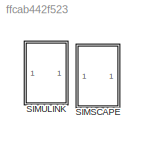
MODEL slx_ffcab442f523
KIND model
CONFIG AbsTol = auto
CONFIG EnableMultiTasking = off
CONFIG FixedStep = auto
CONFIG MaxStep = auto
CONFIG MinStep = auto
CONFIG RelTol = 1e-3
CONFIG SampleTimeConstraint = Unconstrained
CONFIG SolverName = VariableStepAuto
CONFIG StartTime = 0.0
CONFIG StopTime = 10.0
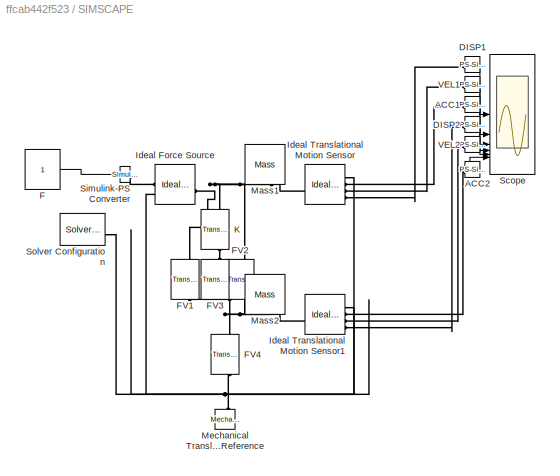
BLOCK [SubSystem] SIMSCAPE
BLOCK [Reference] SIMSCAPE/ACC1  REF=nesl_utility/PS-Simulink
Converter
  NameLocation = right
  SourceBlock = nesl_utility/PS-Simulink\nConverter
  SourceType = PS-Simulink\nConverter
BLOCK [Reference] SIMSCAPE/ACC2  REF=nesl_utility/PS-Simulink
Converter
  SourceBlock = nesl_utility/PS-Simulink\nConverter
  SourceType = PS-Simulink\nConverter
BLOCK [Reference] SIMSCAPE/DISP1  REF=nesl_utility/PS-Simulink
Converter
  SourceBlock = nesl_utility/PS-Simulink\nConverter
  SourceType = PS-Simulink\nConverter
BLOCK [Reference] SIMSCAPE/DISP2  REF=nesl_utility/PS-Simulink
Converter
  SourceBlock = nesl_utility/PS-Simulink\nConverter
  SourceType = PS-Simulink\nConverter
BLOCK [Constant] SIMSCAPE/F
BLOCK [Reference] SIMSCAPE/FV1  REF=fl_lib/Mechanical/Translational
Elements/Translational Damper
  NameLocation = left
  SourceBlock = fl_lib/Mechanical/Translational\nElements/Translational Damper
  SourceType = Translational Damper
BLOCK [Reference] SIMSCAPE/FV2  REF=fl_lib/Mechanical/Translational
Elements/Translational Damper
  SourceBlock = fl_lib/Mechanical/Translational\nElements/Translational Damper
  SourceType = Translational Damper
BLOCK [Reference] SIMSCAPE/FV3  REF=fl_lib/Mechanical/Translational
Elements/Translational Damper
  SourceBlock = fl_lib/Mechanical/Translational\nElements/Translational Damper
  SourceType = Translational Damper
BLOCK [Reference] SIMSCAPE/FV4  REF=fl_lib/Mechanical/Translational
Elements/Translational Damper
  NameLocation = left
  SourceBlock = fl_lib/Mechanical/Translational\nElements/Translational Damper
  SourceType = Translational Damper
BLOCK [Reference] SIMSCAPE/Ideal Force Source  REF=fl_lib/Mechanical/Mechanical Sources/Ideal Force Source
  NameLocation = top
  SourceBlock = fl_lib/Mechanical/Mechanical Sources/Ideal Force Source
  SourceType = Ideal Force Source
BLOCK [Reference] SIMSCAPE/Ideal Translational Motion Sensor  REF=fl_lib/Mechanical/Mechanical Sensors/Ideal Translational
Motion Sensor
  SourceBlock = fl_lib/Mechanical/Mechanical Sensors/Ideal Translational\nMotion Sensor
  SourceType = Ideal Translational\nMotion Sensor
BLOCK [Reference] SIMSCAPE/Ideal Translational Motion Sensor1  REF=fl_lib/Mechanical/Mechanical Sensors/Ideal Translational
Motion Sensor
  SourceBlock = fl_lib/Mechanical/Mechanical Sensors/Ideal Translational\nMotion Sensor
  SourceType = Ideal Translational\nMotion Sensor
BLOCK [Reference] SIMSCAPE/K  REF=fl_lib/Mechanical/Translational
Elements/Translational Spring
  NameLocation = left
  SourceBlock = fl_lib/Mechanical/Translational\nElements/Translational Spring
  SourceType = Translational Spring
BLOCK [Reference] SIMSCAPE/Mass1  REF=fl_lib/Mechanical/Translational
Elements/Mass
  NameLocation = top
  SourceBlock = fl_lib/Mechanical/Translational\nElements/Mass
  SourceType = Mass
BLOCK [Reference] SIMSCAPE/Mass2  REF=fl_lib/Mechanical/Translational
Elements/Mass
  NameLocation = right
  SourceBlock = fl_lib/Mechanical/Translational\nElements/Mass
  SourceType = Mass
BLOCK [Reference] SIMSCAPE/Mechanical Translational Reference  REF=fl_lib/Mechanical/Translational
Elements/Mechanical
Translational
Reference
  NameLocation = right
  SourceBlock = fl_lib/Mechanical/Translational\nElements/Mechanical\nTranslational\nReference
  SourceType = Mechanical\nTranslational\nReference
BLOCK [Scope] SIMSCAPE/Scope
  Floating = off
  NumInputPorts = 6
  ScopeSpecificationString = Simulink.scopes.TimeScopeBlockCfg('CurrentConfiguration', extmgr.ConfigurationSet(extmgr.Configuration('Core','General UI',true),extmgr.Configuration('Core','Source UI',true),extmgr.Configuration('Sources','WiredSimulink',true,'DataLoggingVariableName','ScopeData1'),extmgr.Configuration('Visuals','Time Domain',true,'SerializedDisplays',{struct('MinYLimReal','-0.33319','MaxYLimReal','2.99874','YLab...<+5376ch>
BLOCK [Reference] SIMSCAPE/Simulink-PS Converter  REF=nesl_utility/Simulink-PS
Converter
  SourceBlock = nesl_utility/Simulink-PS\nConverter
  SourceType = Simulink-PS\nConverter
BLOCK [Reference] SIMSCAPE/Solver Configuration  REF=nesl_utility/Solver
Configuration
  SourceBlock = nesl_utility/Solver\nConfiguration
  SourceType = Solver\nConfiguration
BLOCK [Reference] SIMSCAPE/VEL1  REF=nesl_utility/PS-Simulink
Converter
  SourceBlock = nesl_utility/PS-Simulink\nConverter
  SourceType = PS-Simulink\nConverter
BLOCK [Reference] SIMSCAPE/VEL2  REF=nesl_utility/PS-Simulink
Converter
  SourceBlock = nesl_utility/PS-Simulink\nConverter
  SourceType = PS-Simulink\nConverter
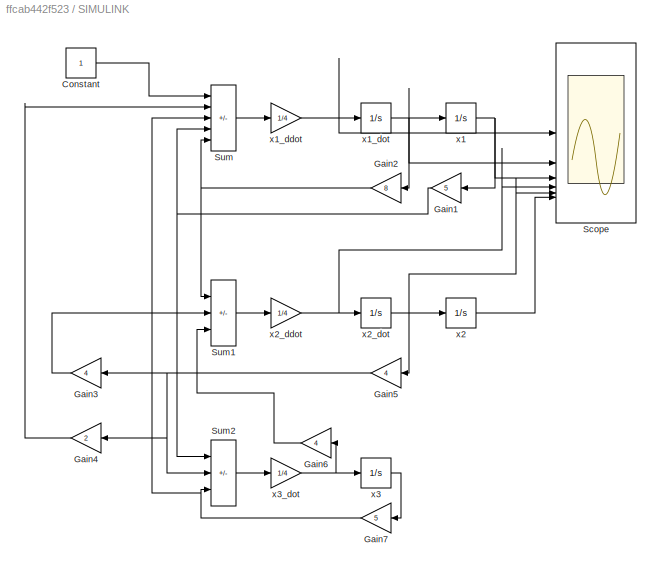
BLOCK [SubSystem] SIMULINK
  Commented = on
BLOCK [Constant] SIMULINK/Constant
BLOCK [Gain] SIMULINK/Gain1
  Gain = 5
  NameLocation = top
BLOCK [Gain] SIMULINK/Gain2
  Gain = 8
  NameLocation = top
BLOCK [Gain] SIMULINK/Gain3
  Gain = 4
  NameLocation = top
BLOCK [Gain] SIMULINK/Gain4
  Gain = 2
  NameLocation = top
BLOCK [Gain] SIMULINK/Gain5
  Gain = 4
  NameLocation = top
BLOCK [Gain] SIMULINK/Gain6
  Gain = 4
  NameLocation = top
BLOCK [Gain] SIMULINK/Gain7
  Gain = 5
  NameLocation = top
BLOCK [Scope] SIMULINK/Scope
  Floating = off
  NumInputPorts = 6
  ScopeSpecificationString = Simulink.scopes.TimeScopeBlockCfg('CurrentConfiguration', extmgr.ConfigurationSet(extmgr.Configuration('Core','General UI',true),extmgr.Configuration('Core','Source UI',true),extmgr.Configuration('Sources','WiredSimulink',true),extmgr.Configuration('Visuals','Time Domain',true,'SerializedDisplays',{struct('MinYLimReal','-0.0297','MaxYLimReal','0.28108','YLabelReal','','MinYLimMag','0.00000','MaxYL...<+5389ch>
BLOCK [Sum] SIMULINK/Sum
  IconShape = rectangular
  Inputs = +++--
BLOCK [Sum] SIMULINK/Sum1
  IconShape = rectangular
  Inputs = +-+
BLOCK [Sum] SIMULINK/Sum2
  IconShape = rectangular
  Inputs = ++-
BLOCK [Integrator] SIMULINK/x1
BLOCK [Gain] SIMULINK/x1_ddot
  Gain = 1/4
BLOCK [Integrator] SIMULINK/x1_dot
BLOCK [Integrator] SIMULINK/x2
BLOCK [Gain] SIMULINK/x2_ddot
  Gain = 1/4
BLOCK [Integrator] SIMULINK/x2_dot
BLOCK [Integrator] SIMULINK/x3
BLOCK [Gain] SIMULINK/x3_dot
  Gain = 1/4
LINE SIMSCAPE/ACC1:1 -> SIMSCAPE/Scope:3
LINE SIMSCAPE/ACC2:1 -> SIMSCAPE/Scope:6
LINE SIMSCAPE/DISP1:1 -> SIMSCAPE/Scope:1
LINE SIMSCAPE/DISP2:1 -> SIMSCAPE/Scope:4
LINE SIMSCAPE/F:1 -> SIMSCAPE/Simulink-PS Converter:1
LINE SIMSCAPE/VEL1:1 -> SIMSCAPE/Scope:2
LINE SIMSCAPE/VEL2:1 -> SIMSCAPE/Scope:5
LINE SIMULINK/Constant:1 -> SIMULINK/Sum:1
NET SIMULINK/Gain1:1 -> SIMULINK/Sum2:1, SIMULINK/Sum:4
NET SIMULINK/Gain2:1 -> SIMULINK/Sum1:1, SIMULINK/Sum:5
LINE SIMULINK/Gain3:1 -> SIMULINK/Sum1:2
LINE SIMULINK/Gain4:1 -> SIMULINK/Sum:2
NET SIMULINK/Gain5:1 -> SIMULINK/Gain3:1, SIMULINK/Gain4:1, SIMULINK/Sum2:2
LINE SIMULINK/Gain6:1 -> SIMULINK/Sum1:3
NET SIMULINK/Gain7:1 -> SIMULINK/Sum2:3, SIMULINK/Sum:3
LINE SIMULINK/Sum1:1 -> SIMULINK/x2_ddot:1
LINE SIMULINK/Sum2:1 -> SIMULINK/x3_dot:1
LINE SIMULINK/Sum:1 -> SIMULINK/x1_ddot:1
NET SIMULINK/x1:1 -> SIMULINK/Gain1:1, SIMULINK/Scope:3
NET SIMULINK/x1_ddot:1 -> SIMULINK/Scope:1, SIMULINK/x1_dot:1
NET SIMULINK/x1_dot:1 -> SIMULINK/Gain2:1, SIMULINK/Scope:2, SIMULINK/x1:1
LINE SIMULINK/x2:1 -> SIMULINK/Scope:6
NET SIMULINK/x2_ddot:1 -> SIMULINK/Scope:4, SIMULINK/x2_dot:1
NET SIMULINK/x2_dot:1 -> SIMULINK/Gain5:1, SIMULINK/Scope:5, SIMULINK/x2:1
LINE SIMULINK/x3:1 -> SIMULINK/Gain7:1
NET SIMULINK/x3_dot:1 -> SIMULINK/Gain6:1, SIMULINK/x3:1
PLINE SIMSCAPE/ACC1:LConn1 -- SIMSCAPE/Ideal Translational Motion Sensor:RConn2
PLINE SIMSCAPE/ACC2:LConn1 -- SIMSCAPE/Ideal Translational Motion Sensor1:RConn2
PLINE SIMSCAPE/DISP1:LConn1 -- SIMSCAPE/Ideal Translational Motion Sensor:RConn4
PLINE SIMSCAPE/DISP2:LConn1 -- SIMSCAPE/Ideal Translational Motion Sensor1:RConn4
PNET net1: SIMSCAPE/FV1:LConn1 -- SIMSCAPE/FV2:LConn1 -- SIMSCAPE/Ideal Force Source:LConn1 -- SIMSCAPE/Ideal Translational Motion Sensor:LConn1 -- SIMSCAPE/K:LConn1 -- SIMSCAPE/Mass1:LConn1
PNET net2: SIMSCAPE/FV1:RConn1 -- SIMSCAPE/FV2:RConn1 -- SIMSCAPE/FV3:RConn1 -- SIMSCAPE/FV4:LConn1 -- SIMSCAPE/Ideal Translational Motion Sensor1:LConn1 -- SIMSCAPE/Mass2:LConn1
PLINE SIMSCAPE/FV3:LConn1 -- SIMSCAPE/K:RConn1
PNET net3: SIMSCAPE/FV4:RConn1 -- SIMSCAPE/Ideal Force Source:RConn2 -- SIMSCAPE/Ideal Translational Motion Sensor1:RConn1 -- SIMSCAPE/Ideal Translational Motion Sensor:RConn1 -- SIMSCAPE/Mechanical Translational Reference:LConn1 -- SIMSCAPE/Solver Configuration:RConn1
PLINE SIMSCAPE/Ideal Force Source:RConn1 -- SIMSCAPE/Simulink-PS Converter:RConn1
PLINE SIMSCAPE/Ideal Translational Motion Sensor1:RConn3 -- SIMSCAPE/VEL2:LConn1
PLINE SIMSCAPE/Ideal Translational Motion Sensor:RConn3 -- SIMSCAPE/VEL1:LConn1
note: NET lines group one-source signal fan-out (src -> all destinations, sorted); 1:1 wires keep LINE; PNET lines group multi-terminal physical nets as a canonical sorted terminal list (undirected conserving connections); 2-terminal nets keep the pairwise PLINE form
